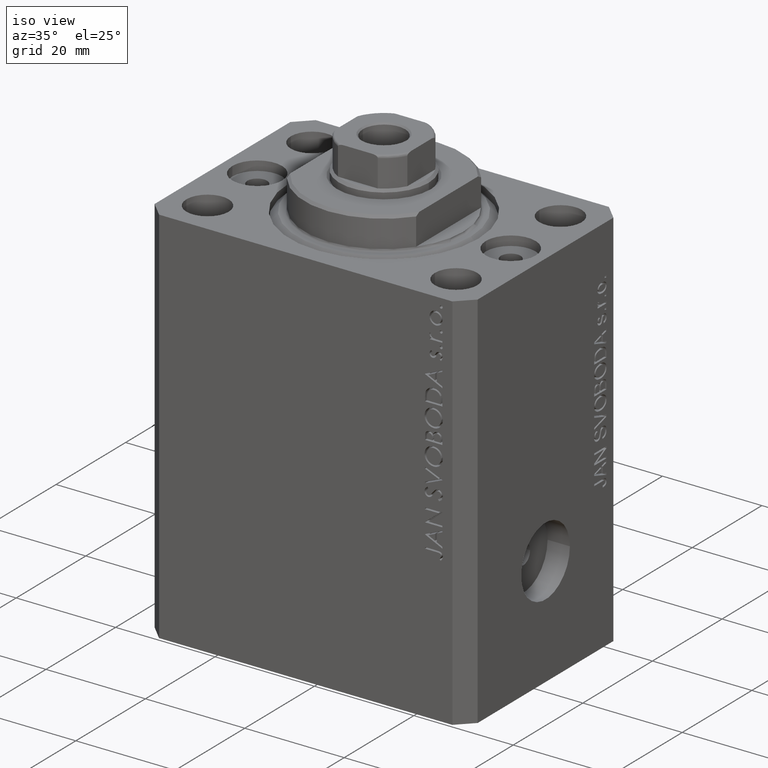
[diagram: clean part render]
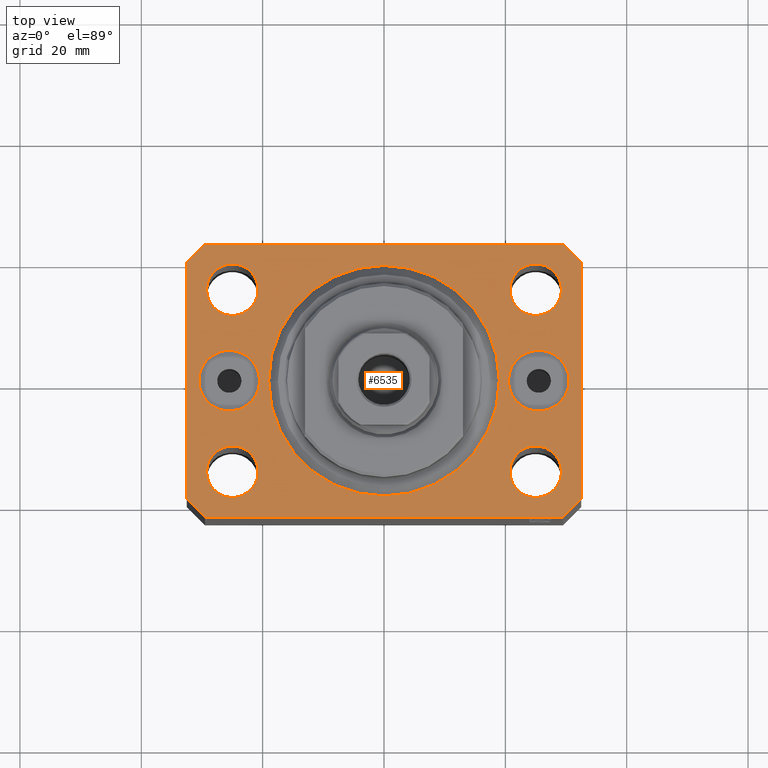
[diagram: tour spotlight — one face highlighted and labeled with its STEP entity id]
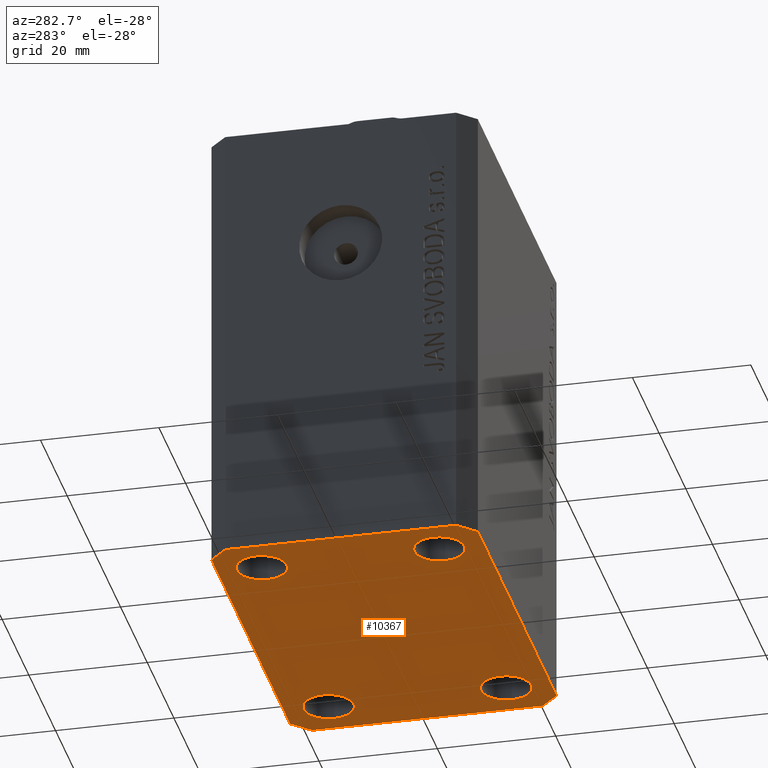
[diagram: tour spotlight — one face highlighted and labeled with its STEP entity id]
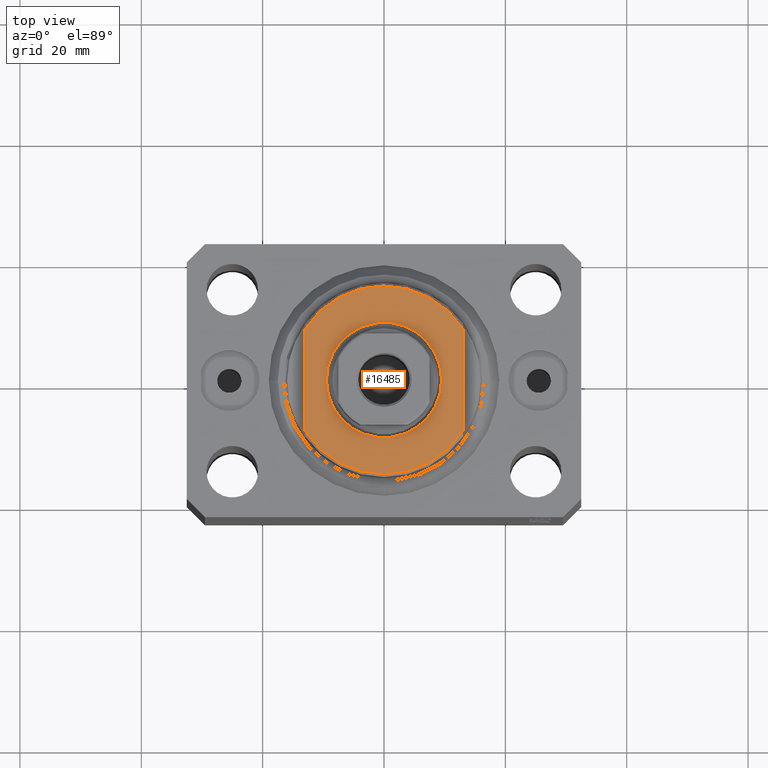
[diagram: tour spotlight — one face highlighted and labeled with its STEP entity id]
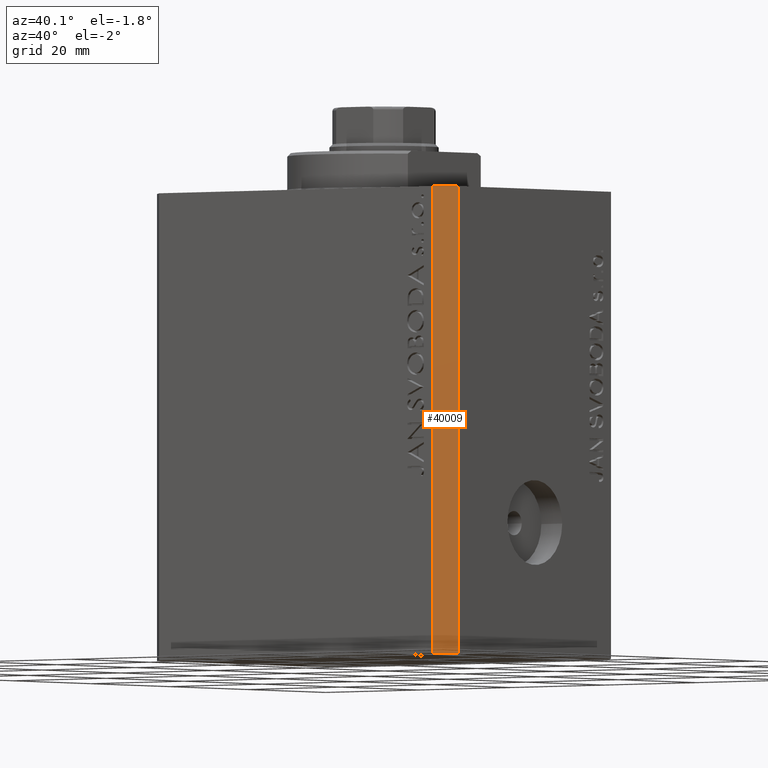
[diagram: tour spotlight — one face highlighted and labeled with its STEP entity id]
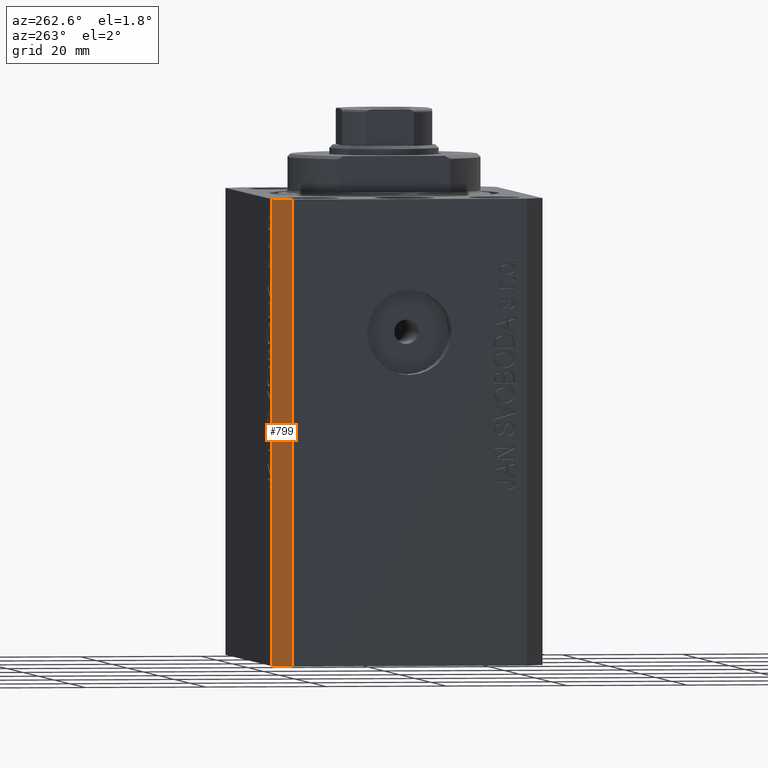
[diagram: tour spotlight — one face highlighted and labeled with its STEP entity id]
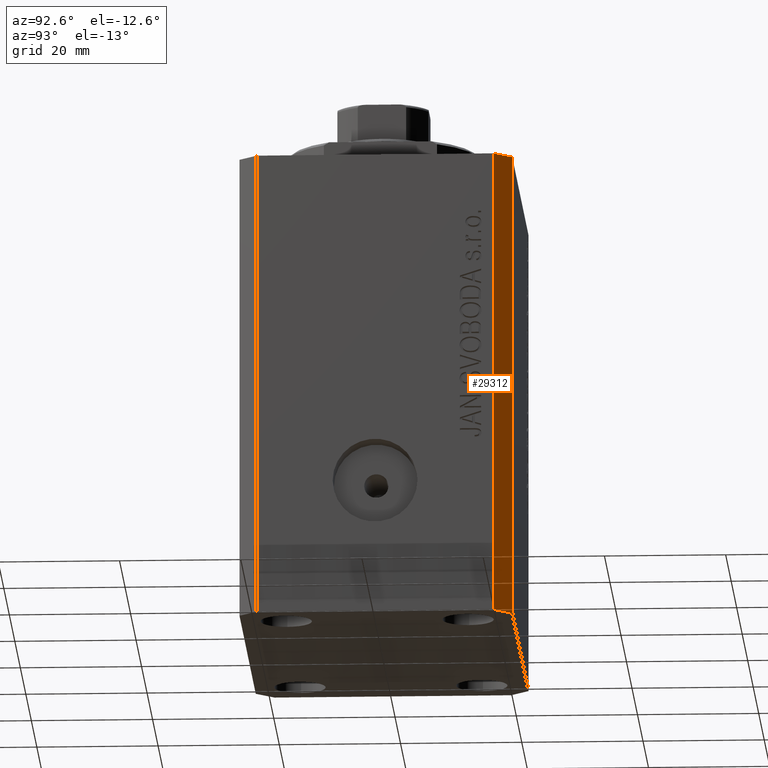
[diagram: tour spotlight — one face highlighted and labeled with its STEP entity id]
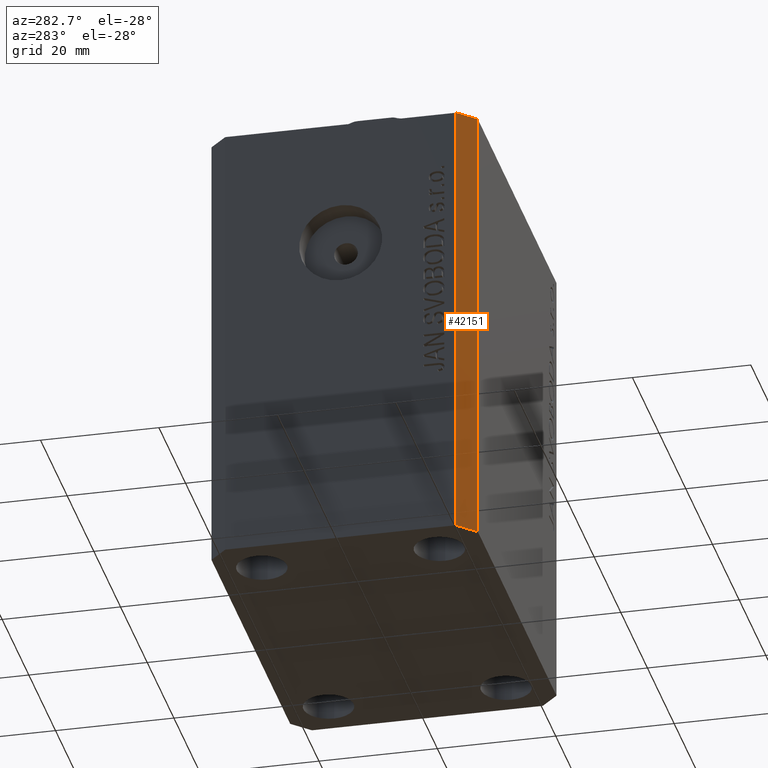
[diagram: tour spotlight — one face highlighted and labeled with its STEP entity id]
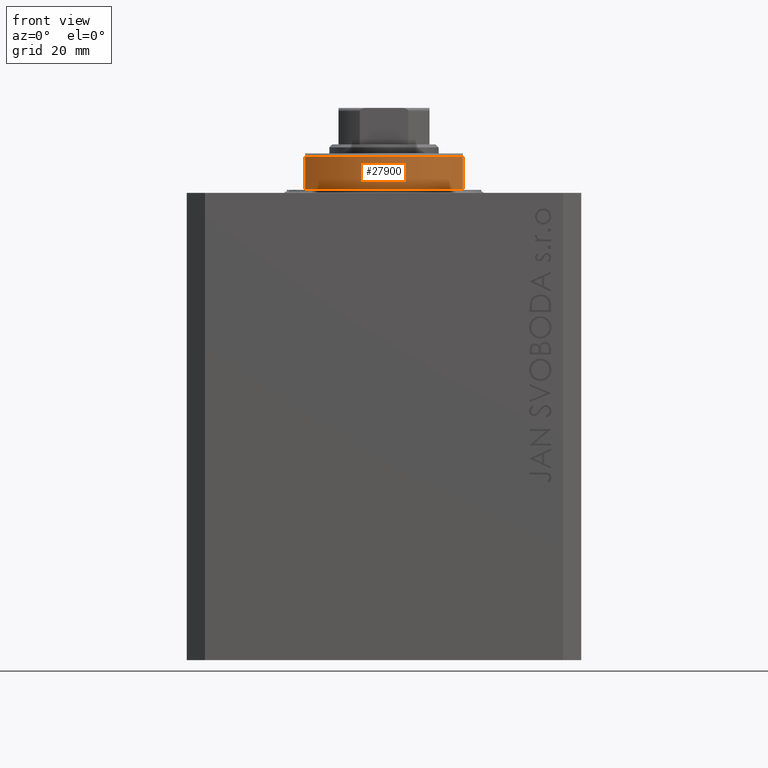
[diagram: tour spotlight — one face highlighted and labeled with its STEP entity id]
A machine part: a face-by-face anatomy tour. The part has 864 B-rep faces; the first image is the clean iso view, then the 8 largest visible faces are spotlighted one at a time (largest first), each with its STEP entity span.

Face 1 — top view, entity #6535. In plain terms, the highlighted planar face has unit normal (0, 0, 1).
Definition (entity closure, byte-faithful):
#118 = AXIS2_PLACEMENT_3D ( 'NONE', #22908, #26051, #29667 ) ;
#160 = CARTESIAN_POINT ( 'NONE',  ( 20.75000000004271072, 14.99999999999999289, 0.000000000000000000 ) ) ;
#183 = CARTESIAN_POINT ( 'NONE',  ( -32.49999999999650413, 19.49999999999949907, 0.000000000000000000 ) ) ;
#424 = ORIENTED_EDGE ( 'NONE', *, *, #6793, .F. ) ;
#431 = DIRECTION ( 'NONE',  ( 0.000000000000000000, -0.000000000000000000, -1.000000000000000000 ) ) ;
#1109 = CIRCLE ( 'NONE', #6868, 4.250000000040370374 ) ;
#1147 = CARTESIAN_POINT ( 'NONE',  ( -29.49999999999650413, 22.49999999999949907, 0.000000000000000000 ) ) ;
#1176 = AXIS2_PLACEMENT_3D ( 'NONE', #25737, #39456, #39677 ) ;
#1183 = CARTESIAN_POINT ( 'NONE',  ( 25.00000000000000000, 14.99999999999999289, 0.000000000000000000 ) ) ;
#1264 = DIRECTION ( 'NONE',  ( 1.000000000000000000, 0.000000000000000000, 0.000000000000000000 ) ) ;
#1476 = AXIS2_PLACEMENT_3D ( 'NONE', #43531, #42777, #32453 ) ;
#1494 = VERTEX_POINT ( 'NONE', #20289 ) ;
#1501 = AXIS2_PLACEMENT_3D ( 'NONE', #10987, #25167, #35503 ) ;
#1504 = EDGE_LOOP ( 'NONE', ( #42966, #39651 ) ) ;
#1828 = VERTEX_POINT ( 'NONE', #15194 ) ;
#1849 = CIRCLE ( 'NONE', #28434, 19.00000000000000000 ) ;
#1906 = ORIENTED_EDGE ( 'NONE', *, *, #6217, .F. ) ;
#2116 = DIRECTION ( 'NONE',  ( 0.000000000000000000, 0.000000000000000000, 1.000000000000000000 ) ) ;
#2318 = CARTESIAN_POINT ( 'NONE',  ( -29.49999999999650413, -22.49999999999949907, 0.000000000000000000 ) ) ;
#2359 = EDGE_CURVE ( 'NONE', #35031, #4308, #33827, .T. ) ;
#2524 = ORIENTED_EDGE ( 'NONE', *, *, #11806, .T. ) ;
#3663 = CARTESIAN_POINT ( 'NONE',  ( 32.49999999999651124, -19.49999999999949196, 0.000000000000000000 ) ) ;
#3719 = DIRECTION ( 'NONE',  ( 0.7071067811865483499, 0.7071067811865466846, 0.000000000000000000 ) ) ;
#3772 = VECTOR ( 'NONE', #27748, 1000.000000000000000 ) ;
#3783 = DIRECTION ( 'NONE',  ( 1.000000000000000000, 0.000000000000000000, 0.000000000000000000 ) ) ;
#3875 = CARTESIAN_POINT ( 'NONE',  ( 29.49999999999707967, 22.49999999999952038, 0.000000000000000000 ) ) ;
#3940 = CIRCLE ( 'NONE', #34814, 4.249999999976314058 ) ;
#4308 = VERTEX_POINT ( 'NONE', #3875 ) ;
#4645 = AXIS2_PLACEMENT_3D ( 'NONE', #34412, #6759, #37123 ) ;
#5020 = LINE ( 'NONE', #2318, #21180 ) ;
#5638 = DIRECTION ( 'NONE',  ( 0.000000000000000000, 0.000000000000000000, 1.000000000000000000 ) ) ;
#5723 = VERTEX_POINT ( 'NONE', #183 ) ;
#5763 = CARTESIAN_POINT ( 'NONE',  ( -29.49999999999650413, -22.49999999999949907, 0.000000000000000000 ) ) ;
#6217 = EDGE_CURVE ( 'NONE', #11449, #36524, #3940, .T. ) ;
#6535 = ADVANCED_FACE ( 'NONE', ( #36898, #24251, #37948, #43861, #37731, #10716, #7142, #14096 ), #27839, .T. ) ;
#6759 = DIRECTION ( 'NONE',  ( 0.000000000000000000, 0.000000000000000000, 1.000000000000000000 ) ) ;
#6793 = EDGE_CURVE ( 'NONE', #20005, #40173, #33815, .T. ) ;
#6868 = AXIS2_PLACEMENT_3D ( 'NONE', #14741, #21077, #1264 ) ;
#7142 = FACE_BOUND ( 'NONE', #37693, .T. ) ;
#7230 = EDGE_CURVE ( 'NONE', #17576, #35031, #17146, .T. ) ;
#7292 = AXIS2_PLACEMENT_3D ( 'NONE', #13438, #27186, #3783 ) ;
#7347 = CARTESIAN_POINT ( 'NONE',  ( 32.49999999999702993, 19.49999999999945999, 0.000000000000000000 ) ) ;
#7836 = AXIS2_PLACEMENT_3D ( 'NONE', #1183, #36237, #14871 ) ;
#8251 = VECTOR ( 'NONE', #10259, 1000.000000000000114 ) ;
#8273 = EDGE_CURVE ( 'NONE', #16679, #42907, #20909, .T. ) ;
#9001 = CARTESIAN_POINT ( 'NONE',  ( -20.74999999995962341, -15.00000000000000355, 0.000000000000000000 ) ) ;
#9236 = EDGE_CURVE ( 'NONE', #36524, #11449, #40324, .T. ) ;
#9349 = EDGE_CURVE ( 'NONE', #1494, #29131, #26692, .T. ) ;
#9544 = CARTESIAN_POINT ( 'NONE',  ( 29.49999999999707967, 22.49999999999952038, 0.000000000000000000 ) ) ;
#9907 = CARTESIAN_POINT ( 'NONE',  ( 30.50000000000333955, 0.000000000000000000, 0.000000000000000000 ) ) ;
#10259 = DIRECTION ( 'NONE',  ( 0.7071067811865474617, -0.7071067811865474617, 0.000000000000000000 ) ) ;
#10284 = ORIENTED_EDGE ( 'NONE', *, *, #12834, .F. ) ;
#10500 = VERTEX_POINT ( 'NONE', #43604 ) ;
#10584 = CARTESIAN_POINT ( 'NONE',  ( -32.49999999999650413, 19.49999999999949907, 0.000000000000000000 ) ) ;
#10716 = FACE_BOUND ( 'NONE', #20881, .T. ) ;
#10987 = CARTESIAN_POINT ( 'NONE',  ( -25.50000000000000000, 0.000000000000000000, 0.000000000000000000 ) ) ;
#11098 = VERTEX_POINT ( 'NONE', #1147 ) ;
#11155 = ORIENTED_EDGE ( 'NONE', *, *, #8273, .F. ) ;
#11449 = VERTEX_POINT ( 'NONE', #29412 ) ;
#11536 = ORIENTED_EDGE ( 'NONE', *, *, #42639, .F. ) ;
#11559 = CARTESIAN_POINT ( 'NONE',  ( 20.49999999999665690, 6.123233995740857512E-16, 0.000000000000000000 ) ) ;
#11677 = CARTESIAN_POINT ( 'NONE',  ( 0.000000000000000000, 0.000000000000000000, 0.000000000000000000 ) ) ;
#11806 = EDGE_CURVE ( 'NONE', #4308, #11098, #12233, .T. ) ;
#12087 = CARTESIAN_POINT ( 'NONE',  ( 32.49999999999651124, -19.49999999999949196, 0.000000000000000000 ) ) ;
#12147 = DIRECTION ( 'NONE',  ( 0.000000000000000000, -0.000000000000000000, -1.000000000000000000 ) ) ;
#12192 = CARTESIAN_POINT ( 'NONE',  ( 24.99999999999999289, -15.00000000000000355, 0.000000000000000000 ) ) ;
#12233 = LINE ( 'NONE', #9544, #12390 ) ;
#12390 = VECTOR ( 'NONE', #36995, 1000.000000000000000 ) ;
#12435 = CARTESIAN_POINT ( 'NONE',  ( -25.50000000000000000, 0.000000000000000000, 0.000000000000000000 ) ) ;
#12603 = DIRECTION ( 'NONE',  ( 1.000000000000000000, 0.000000000000000000, 0.000000000000000000 ) ) ;
#12834 = EDGE_CURVE ( 'NONE', #28026, #10500, #24667, .T. ) ;
#13100 = EDGE_LOOP ( 'NONE', ( #32672, #424 ) ) ;
#13438 = CARTESIAN_POINT ( 'NONE',  ( 25.00000000000000000, 14.99999999999999289, 0.000000000000000000 ) ) ;
#13740 = LINE ( 'NONE', #10584, #31376 ) ;
#13965 = DIRECTION ( 'NONE',  ( 0.000000000000000000, -1.000000000000000000, 0.000000000000000000 ) ) ;
#14096 = FACE_BOUND ( 'NONE', #26546, .T. ) ;
#14741 = CARTESIAN_POINT ( 'NONE',  ( -24.99999999999999289, -15.00000000000000355, 0.000000000000000000 ) ) ;
#14871 = DIRECTION ( 'NONE',  ( 1.000000000000000000, 0.000000000000000000, 0.000000000000000000 ) ) ;
#15065 = CARTESIAN_POINT ( 'NONE',  ( -20.49999999999665690, 0.000000000000000000, 0.000000000000000000 ) ) ;
#15194 = CARTESIAN_POINT ( 'NONE',  ( 19.00000000000000000, 0.000000000000000000, 0.000000000000000000 ) ) ;
#15333 = CARTESIAN_POINT ( 'NONE',  ( -19.00000000000000000, 2.326828918379970970E-15, 0.000000000000000000 ) ) ;
#15714 = CIRCLE ( 'NONE', #28649, 5.000000000003342215 ) ;
#15718 = CIRCLE ( 'NONE', #7836, 4.249999999957291053 ) ;
#15740 = ORIENTED_EDGE ( 'NONE', *, *, #23583, .F. ) ;
#15792 = DIRECTION ( 'NONE',  ( 1.000000000000000000, 1.176083712526788232E-16, 0.000000000000000000 ) ) ;
#16032 = DIRECTION ( 'NONE',  ( 0.000000000000000000, 0.000000000000000000, 1.000000000000000000 ) ) ;
#16679 = VERTEX_POINT ( 'NONE', #15065 ) ;
#17004 = CIRCLE ( 'NONE', #1176, 4.250000000021375790 ) ;
#17146 = LINE ( 'NONE', #3663, #30967 ) ;
#17213 = CIRCLE ( 'NONE', #21513, 5.000000000003342215 ) ;
#17427 = LINE ( 'NONE', #41051, #33019 ) ;
#17576 = VERTEX_POINT ( 'NONE', #12087 ) ;
#17724 = CARTESIAN_POINT ( 'NONE',  ( -20.74999999997862687, 14.99999999999999645, 0.000000000000000000 ) ) ;
#17972 = AXIS2_PLACEMENT_3D ( 'NONE', #24472, #5638, #26341 ) ;
#18324 = ORIENTED_EDGE ( 'NONE', *, *, #7230, .T. ) ;
#18647 = VERTEX_POINT ( 'NONE', #9907 ) ;
#19147 = CARTESIAN_POINT ( 'NONE',  ( -29.49999999999650413, 22.49999999999949907, 0.000000000000000000 ) ) ;
#19170 = ORIENTED_EDGE ( 'NONE', *, *, #42105, .T. ) ;
#19192 = DIRECTION ( 'NONE',  ( 1.000000000000000000, 0.000000000000000000, 0.000000000000000000 ) ) ;
#19615 = AXIS2_PLACEMENT_3D ( 'NONE', #35917, #39286, #32120 ) ;
#19828 = LINE ( 'NONE', #19147, #39417 ) ;
#20005 = VERTEX_POINT ( 'NONE', #29644 ) ;
#20166 = VERTEX_POINT ( 'NONE', #20810 ) ;
#20248 = CARTESIAN_POINT ( 'NONE',  ( -32.49999999999650413, -19.49999999999949907, 0.000000000000000000 ) ) ;
#20289 = CARTESIAN_POINT ( 'NONE',  ( 29.24999999995729283, 14.99999999999999289, 0.000000000000000000 ) ) ;
#20414 = CARTESIAN_POINT ( 'NONE',  ( -32.49999999999650413, -19.49999999999949907, 0.000000000000000000 ) ) ;
#20736 = EDGE_CURVE ( 'NONE', #23270, #1828, #31971, .T. ) ;
#20810 = CARTESIAN_POINT ( 'NONE',  ( 29.49999999999650413, -22.49999999999949196, 0.000000000000000000 ) ) ;
#20881 = EDGE_LOOP ( 'NONE', ( #15740, #40560 ) ) ;
#20909 = CIRCLE ( 'NONE', #1501, 5.000000000003342215 ) ;
#21077 = DIRECTION ( 'NONE',  ( 0.000000000000000000, 0.000000000000000000, 1.000000000000000000 ) ) ;
#21180 = VECTOR ( 'NONE', #15792, 1000.000000000000000 ) ;
#21513 = AXIS2_PLACEMENT_3D ( 'NONE', #12435, #2116, #21914 ) ;
#21914 = DIRECTION ( 'NONE',  ( 1.000000000000000000, 0.000000000000000000, 0.000000000000000000 ) ) ;
#22908 = CARTESIAN_POINT ( 'NONE',  ( 24.99999999999999289, -15.00000000000000355, 0.000000000000000000 ) ) ;
#23270 = VERTEX_POINT ( 'NONE', #15333 ) ;
#23583 = EDGE_CURVE ( 'NONE', #1828, #23270, #1849, .T. ) ;
#24097 = EDGE_CURVE ( 'NONE', #36802, #20166, #5020, .T. ) ;
#24251 = FACE_BOUND ( 'NONE', #25091, .T. ) ;
#24472 = CARTESIAN_POINT ( 'NONE',  ( 0.000000000000000000, 0.000000000000000000, 0.000000000000000000 ) ) ;
#24663 = ORIENTED_EDGE ( 'NONE', *, *, #39652, .T. ) ;
#24667 = CIRCLE ( 'NONE', #19615, 4.250000000021375790 ) ;
#25091 = EDGE_LOOP ( 'NONE', ( #10284, #25964 ) ) ;
#25167 = DIRECTION ( 'NONE',  ( 0.000000000000000000, 0.000000000000000000, 1.000000000000000000 ) ) ;
#25345 = ORIENTED_EDGE ( 'NONE', *, *, #40935, .T. ) ;
#25695 = EDGE_CURVE ( 'NONE', #32524, #36802, #30543, .T. ) ;
#25737 = CARTESIAN_POINT ( 'NONE',  ( -25.00000000000000000, 14.99999999999999645, 0.000000000000000000 ) ) ;
#25964 = ORIENTED_EDGE ( 'NONE', *, *, #29315, .F. ) ;
#26051 = DIRECTION ( 'NONE',  ( 0.000000000000000000, 0.000000000000000000, 1.000000000000000000 ) ) ;
#26341 = DIRECTION ( 'NONE',  ( 1.000000000000000000, 0.000000000000000000, -0.000000000000000000 ) ) ;
#26546 = EDGE_LOOP ( 'NONE', ( #30571, #25345 ) ) ;
#26692 = CIRCLE ( 'NONE', #7292, 4.249999999957291053 ) ;
#26792 = EDGE_LOOP ( 'NONE', ( #1906, #30069 ) ) ;
#26864 = CARTESIAN_POINT ( 'NONE',  ( 32.49999999999702993, 19.49999999999945999, 0.000000000000000000 ) ) ;
#27186 = DIRECTION ( 'NONE',  ( 0.000000000000000000, 0.000000000000000000, 1.000000000000000000 ) ) ;
#27615 = EDGE_CURVE ( 'NONE', #40173, #20005, #1109, .T. ) ;
#27748 = DIRECTION ( 'NONE',  ( -0.7071067811865344721, 0.7071067811865606734, 0.000000000000000000 ) ) ;
#27839 = PLANE ( 'NONE',  #17972 ) ;
#27859 = CIRCLE ( 'NONE', #29290, 5.000000000003342215 ) ;
#28026 = VERTEX_POINT ( 'NONE', #17724 ) ;
#28434 = AXIS2_PLACEMENT_3D ( 'NONE', #11677, #42937, #42500 ) ;
#28649 = AXIS2_PLACEMENT_3D ( 'NONE', #33315, #12147, #12603 ) ;
#29131 = VERTEX_POINT ( 'NONE', #160 ) ;
#29290 = AXIS2_PLACEMENT_3D ( 'NONE', #37970, #431, #34821 ) ;
#29315 = EDGE_CURVE ( 'NONE', #10500, #28026, #17004, .T. ) ;
#29412 = CARTESIAN_POINT ( 'NONE',  ( 29.24999999997631051, -15.00000000000000355, 0.000000000000000000 ) ) ;
#29624 = EDGE_CURVE ( 'NONE', #5723, #32524, #13740, .T. ) ;
#29644 = CARTESIAN_POINT ( 'NONE',  ( -29.25000000004036593, -15.00000000000000355, 0.000000000000000000 ) ) ;
#29667 = DIRECTION ( 'NONE',  ( 1.000000000000000000, 0.000000000000000000, 0.000000000000000000 ) ) ;
#30069 = ORIENTED_EDGE ( 'NONE', *, *, #9236, .F. ) ;
#30394 = CARTESIAN_POINT ( 'NONE',  ( 20.75000000002367884, -15.00000000000000355, 0.000000000000000000 ) ) ;
#30543 = LINE ( 'NONE', #20414, #8251 ) ;
#30571 = ORIENTED_EDGE ( 'NONE', *, *, #34133, .T. ) ;
#30908 = ORIENTED_EDGE ( 'NONE', *, *, #25695, .T. ) ;
#30967 = VECTOR ( 'NONE', #34685, 1000.000000000000000 ) ;
#31282 = ORIENTED_EDGE ( 'NONE', *, *, #24097, .T. ) ;
#31376 = VECTOR ( 'NONE', #13965, 1000.000000000000000 ) ;
#31971 = CIRCLE ( 'NONE', #4645, 19.00000000000000000 ) ;
#32120 = DIRECTION ( 'NONE',  ( 1.000000000000000000, 0.000000000000000000, 0.000000000000000000 ) ) ;
#32433 = CARTESIAN_POINT ( 'NONE',  ( -30.50000000000333955, 6.123233995740857512E-16, 0.000000000000000000 ) ) ;
#32453 = DIRECTION ( 'NONE',  ( 1.000000000000000000, 0.000000000000000000, 0.000000000000000000 ) ) ;
#32524 = VERTEX_POINT ( 'NONE', #20248 ) ;
#32672 = ORIENTED_EDGE ( 'NONE', *, *, #27615, .F. ) ;
#33019 = VECTOR ( 'NONE', #3719, 1000.000000000000000 ) ;
#33315 = CARTESIAN_POINT ( 'NONE',  ( 25.50000000000000000, 0.000000000000000000, 0.000000000000000000 ) ) ;
#33341 = ORIENTED_EDGE ( 'NONE', *, *, #29624, .T. ) ;
#33815 = CIRCLE ( 'NONE', #1476, 4.250000000040370374 ) ;
#33827 = LINE ( 'NONE', #26864, #3772 ) ;
#34133 = EDGE_CURVE ( 'NONE', #18647, #43887, #27859, .T. ) ;
#34412 = CARTESIAN_POINT ( 'NONE',  ( 0.000000000000000000, 0.000000000000000000, 0.000000000000000000 ) ) ;
#34685 = DIRECTION ( 'NONE',  ( 1.334402673828349134E-14, 1.000000000000000000, 0.000000000000000000 ) ) ;
#34814 = AXIS2_PLACEMENT_3D ( 'NONE', #12192, #16032, #19192 ) ;
#34821 = DIRECTION ( 'NONE',  ( 1.000000000000000000, 0.000000000000000000, 0.000000000000000000 ) ) ;
#35031 = VERTEX_POINT ( 'NONE', #7347 ) ;
#35503 = DIRECTION ( 'NONE',  ( 1.000000000000000000, 0.000000000000000000, 0.000000000000000000 ) ) ;
#35917 = CARTESIAN_POINT ( 'NONE',  ( -25.00000000000000000, 14.99999999999999645, 0.000000000000000000 ) ) ;
#36237 = DIRECTION ( 'NONE',  ( 0.000000000000000000, 0.000000000000000000, 1.000000000000000000 ) ) ;
#36453 = ORIENTED_EDGE ( 'NONE', *, *, #2359, .T. ) ;
#36524 = VERTEX_POINT ( 'NONE', #30394 ) ;
#36802 = VERTEX_POINT ( 'NONE', #5763 ) ;
#36898 = FACE_OUTER_BOUND ( 'NONE', #39625, .T. ) ;
#36910 = DIRECTION ( 'NONE',  ( -0.7071067811865474617, -0.7071067811865474617, 0.000000000000000000 ) ) ;
#36995 = DIRECTION ( 'NONE',  ( -1.000000000000000000, -3.528251137580330676E-16, 0.000000000000000000 ) ) ;
#37123 = DIRECTION ( 'NONE',  ( 1.000000000000000000, 0.000000000000000000, 0.000000000000000000 ) ) ;
#37693 = EDGE_LOOP ( 'NONE', ( #11155, #11536 ) ) ;
#37731 = FACE_BOUND ( 'NONE', #13100, .T. ) ;
#37948 = FACE_BOUND ( 'NONE', #1504, .T. ) ;
#37970 = CARTESIAN_POINT ( 'NONE',  ( 25.50000000000000000, 0.000000000000000000, 0.000000000000000000 ) ) ;
#38297 = EDGE_CURVE ( 'NONE', #29131, #1494, #15718, .T. ) ;
#39286 = DIRECTION ( 'NONE',  ( 0.000000000000000000, 0.000000000000000000, 1.000000000000000000 ) ) ;
#39417 = VECTOR ( 'NONE', #36910, 1000.000000000000114 ) ;
#39456 = DIRECTION ( 'NONE',  ( 0.000000000000000000, 0.000000000000000000, 1.000000000000000000 ) ) ;
#39625 = EDGE_LOOP ( 'NONE', ( #2524, #19170, #33341, #30908, #31282, #24663, #18324, #36453 ) ) ;
#39651 = ORIENTED_EDGE ( 'NONE', *, *, #38297, .F. ) ;
#39652 = EDGE_CURVE ( 'NONE', #20166, #17576, #17427, .T. ) ;
#39677 = DIRECTION ( 'NONE',  ( 1.000000000000000000, 0.000000000000000000, 0.000000000000000000 ) ) ;
#40173 = VERTEX_POINT ( 'NONE', #9001 ) ;
#40324 = CIRCLE ( 'NONE', #118, 4.249999999976314058 ) ;
#40560 = ORIENTED_EDGE ( 'NONE', *, *, #20736, .F. ) ;
#40935 = EDGE_CURVE ( 'NONE', #43887, #18647, #15714, .T. ) ;
#41051 = CARTESIAN_POINT ( 'NONE',  ( 29.49999999999650413, -22.49999999999949196, 0.000000000000000000 ) ) ;
#42105 = EDGE_CURVE ( 'NONE', #11098, #5723, #19828, .T. ) ;
#42500 = DIRECTION ( 'NONE',  ( 1.000000000000000000, 0.000000000000000000, 0.000000000000000000 ) ) ;
#42639 = EDGE_CURVE ( 'NONE', #42907, #16679, #17213, .T. ) ;
#42777 = DIRECTION ( 'NONE',  ( 0.000000000000000000, 0.000000000000000000, 1.000000000000000000 ) ) ;
#42907 = VERTEX_POINT ( 'NONE', #32433 ) ;
#42937 = DIRECTION ( 'NONE',  ( 0.000000000000000000, 0.000000000000000000, 1.000000000000000000 ) ) ;
#42966 = ORIENTED_EDGE ( 'NONE', *, *, #9349, .F. ) ;
#43531 = CARTESIAN_POINT ( 'NONE',  ( -24.99999999999999289, -15.00000000000000355, 0.000000000000000000 ) ) ;
#43604 = CARTESIAN_POINT ( 'NONE',  ( -29.25000000002137668, 14.99999999999999645, 0.000000000000000000 ) ) ;
#43861 = FACE_BOUND ( 'NONE', #26792, .T. ) ;
#43887 = VERTEX_POINT ( 'NONE', #11559 ) ;

Face 2 — auxiliary view, entity #10367. In plain terms, the highlighted planar face has unit normal (0, 0, 1).
Definition (entity closure, byte-faithful):
#155 = AXIS2_PLACEMENT_3D ( 'NONE', #1321, #26037, #36157 ) ;
#522 = EDGE_LOOP ( 'NONE', ( #30920, #9062 ) ) ;
#751 = LINE ( 'NONE', #31132, #20453 ) ;
#1027 = EDGE_CURVE ( 'NONE', #5011, #24009, #10899, .T. ) ;
#1321 = CARTESIAN_POINT ( 'NONE',  ( 24.99999999999999289, -15.00000000000000355, -77.00000000000000000 ) ) ;
#1346 = VERTEX_POINT ( 'NONE', #27782 ) ;
#1353 = DIRECTION ( 'NONE',  ( 1.000000000000000000, 0.000000000000000000, -0.000000000000000000 ) ) ;
#1507 = CARTESIAN_POINT ( 'NONE',  ( -29.49999999999650413, -22.49999999999949907, -77.00000000000000000 ) ) ;
#1569 = CARTESIAN_POINT ( 'NONE',  ( 0.000000000000000000, 0.000000000000000000, -77.00000000000000000 ) ) ;
#1792 = FACE_OUTER_BOUND ( 'NONE', #38044, .T. ) ;
#1832 = DIRECTION ( 'NONE',  ( 1.000000000000000000, 0.000000000000000000, 0.000000000000000000 ) ) ;
#1838 = DIRECTION ( 'NONE',  ( 1.334402673828349134E-14, 1.000000000000000000, 0.000000000000000000 ) ) ;
#2722 = AXIS2_PLACEMENT_3D ( 'NONE', #24926, #34600, #3800 ) ;
#3517 = AXIS2_PLACEMENT_3D ( 'NONE', #42965, #32644, #1832 ) ;
#3800 = DIRECTION ( 'NONE',  ( 1.000000000000000000, 0.000000000000000000, 0.000000000000000000 ) ) ;
#4608 = DIRECTION ( 'NONE',  ( 0.7071067811865474617, -0.7071067811865474617, 0.000000000000000000 ) ) ;
#4758 = DIRECTION ( 'NONE',  ( -0.000000000000000000, -0.000000000000000000, -1.000000000000000000 ) ) ;
#5011 = VERTEX_POINT ( 'NONE', #12466 ) ;
#5142 = VERTEX_POINT ( 'NONE', #29822 ) ;
#5456 = CARTESIAN_POINT ( 'NONE',  ( -32.49999999999650413, 19.49999999999949907, -77.00000000000000000 ) ) ;
#5821 = ORIENTED_EDGE ( 'NONE', *, *, #1027, .F. ) ;
#6197 = LINE ( 'NONE', #19915, #16727 ) ;
#6270 = EDGE_CURVE ( 'NONE', #24009, #5011, #40255, .T. ) ;
#6720 = ORIENTED_EDGE ( 'NONE', *, *, #40064, .F. ) ;
#6900 = AXIS2_PLACEMENT_3D ( 'NONE', #43671, #13742, #37159 ) ;
#7320 = EDGE_CURVE ( 'NONE', #24098, #18546, #31756, .T. ) ;
#7684 = CARTESIAN_POINT ( 'NONE',  ( 29.49999999999707967, 22.49999999999952038, -77.00000000000000000 ) ) ;
#8027 = VERTEX_POINT ( 'NONE', #21624 ) ;
#8484 = DIRECTION ( 'NONE',  ( 1.000000000000000000, 0.000000000000000000, 0.000000000000000000 ) ) ;
#8523 = FACE_BOUND ( 'NONE', #14933, .T. ) ;
#8596 = CIRCLE ( 'NONE', #28747, 4.250000000021375790 ) ;
#8703 = DIRECTION ( 'NONE',  ( -0.000000000000000000, -0.000000000000000000, -1.000000000000000000 ) ) ;
#9058 = DIRECTION ( 'NONE',  ( -0.000000000000000000, -0.000000000000000000, -1.000000000000000000 ) ) ;
#9062 = ORIENTED_EDGE ( 'NONE', *, *, #40894, .F. ) ;
#9736 = AXIS2_PLACEMENT_3D ( 'NONE', #39295, #8703, #8484 ) ;
#9974 = ORIENTED_EDGE ( 'NONE', *, *, #17977, .F. ) ;
#10367 = ADVANCED_FACE ( 'NONE', ( #8523, #25194, #42486, #36188, #1792 ), #12330, .F. ) ;
#10456 = VERTEX_POINT ( 'NONE', #21813 ) ;
#10899 = CIRCLE ( 'NONE', #155, 4.249999999976314058 ) ;
#11298 = CARTESIAN_POINT ( 'NONE',  ( 20.75000000002367884, -15.00000000000000355, -77.00000000000000000 ) ) ;
#11730 = VERTEX_POINT ( 'NONE', #40144 ) ;
#11811 = EDGE_CURVE ( 'NONE', #32590, #24098, #6197, .T. ) ;
#11974 = DIRECTION ( 'NONE',  ( 1.000000000000000000, 0.000000000000000000, 0.000000000000000000 ) ) ;
#12330 = PLANE ( 'NONE',  #29573 ) ;
#12342 = ORIENTED_EDGE ( 'NONE', *, *, #18184, .F. ) ;
#12466 = CARTESIAN_POINT ( 'NONE',  ( 29.24999999997631051, -15.00000000000000355, -77.00000000000000000 ) ) ;
#12758 = ORIENTED_EDGE ( 'NONE', *, *, #23307, .F. ) ;
#12949 = ORIENTED_EDGE ( 'NONE', *, *, #20550, .F. ) ;
#13742 = DIRECTION ( 'NONE',  ( -0.000000000000000000, -0.000000000000000000, -1.000000000000000000 ) ) ;
#14933 = EDGE_LOOP ( 'NONE', ( #38138, #12758 ) ) ;
#15082 = DIRECTION ( 'NONE',  ( 0.000000000000000000, -1.000000000000000000, 0.000000000000000000 ) ) ;
#15358 = EDGE_LOOP ( 'NONE', ( #5821, #33087 ) ) ;
#15574 = CARTESIAN_POINT ( 'NONE',  ( 24.99999999999999289, -15.00000000000000355, -77.00000000000000000 ) ) ;
#16380 = CIRCLE ( 'NONE', #23595, 4.250000000040370374 ) ;
#16727 = VECTOR ( 'NONE', #43964, 1000.000000000000000 ) ;
#17344 = VERTEX_POINT ( 'NONE', #5456 ) ;
#17588 = VECTOR ( 'NONE', #15082, 1000.000000000000000 ) ;
#17977 = EDGE_CURVE ( 'NONE', #8027, #38777, #22415, .T. ) ;
#18184 = EDGE_CURVE ( 'NONE', #1346, #8027, #38780, .T. ) ;
#18435 = EDGE_CURVE ( 'NONE', #38777, #42101, #751, .T. ) ;
#18546 = VERTEX_POINT ( 'NONE', #22310 ) ;
#19915 = CARTESIAN_POINT ( 'NONE',  ( 32.49999999999702993, 19.49999999999945999, -77.00000000000000000 ) ) ;
#20453 = VECTOR ( 'NONE', #38733, 1000.000000000000000 ) ;
#20550 = EDGE_CURVE ( 'NONE', #17344, #1346, #32421, .T. ) ;
#21624 = CARTESIAN_POINT ( 'NONE',  ( -29.49999999999650413, -22.49999999999949907, -77.00000000000000000 ) ) ;
#21642 = LINE ( 'NONE', #42969, #23656 ) ;
#21653 = ORIENTED_EDGE ( 'NONE', *, *, #11811, .F. ) ;
#21813 = CARTESIAN_POINT ( 'NONE',  ( -20.74999999995962341, -15.00000000000000355, -77.00000000000000000 ) ) ;
#21848 = CARTESIAN_POINT ( 'NONE',  ( -32.49999999999650413, 19.49999999999949907, -77.00000000000000000 ) ) ;
#22094 = CIRCLE ( 'NONE', #2722, 4.249999999957291053 ) ;
#22310 = CARTESIAN_POINT ( 'NONE',  ( -29.49999999999650413, 22.49999999999949907, -77.00000000000000000 ) ) ;
#22415 = LINE ( 'NONE', #1507, #42629 ) ;
#23307 = EDGE_CURVE ( 'NONE', #11730, #10456, #44227, .T. ) ;
#23511 = ORIENTED_EDGE ( 'NONE', *, *, #26642, .F. ) ;
#23595 = AXIS2_PLACEMENT_3D ( 'NONE', #25087, #25734, #36082 ) ;
#23656 = VECTOR ( 'NONE', #1838, 1000.000000000000000 ) ;
#23808 = CARTESIAN_POINT ( 'NONE',  ( -29.49999999999650413, 22.49999999999949907, -77.00000000000000000 ) ) ;
#24009 = VERTEX_POINT ( 'NONE', #11298 ) ;
#24098 = VERTEX_POINT ( 'NONE', #26150 ) ;
#24170 = ORIENTED_EDGE ( 'NONE', *, *, #18435, .F. ) ;
#24795 = CARTESIAN_POINT ( 'NONE',  ( -25.00000000000000000, 14.99999999999999645, -77.00000000000000000 ) ) ;
#24926 = CARTESIAN_POINT ( 'NONE',  ( 25.00000000000000000, 14.99999999999999289, -77.00000000000000000 ) ) ;
#25087 = CARTESIAN_POINT ( 'NONE',  ( -24.99999999999999289, -15.00000000000000355, -77.00000000000000000 ) ) ;
#25194 = FACE_BOUND ( 'NONE', #15358, .T. ) ;
#25734 = DIRECTION ( 'NONE',  ( -0.000000000000000000, -0.000000000000000000, -1.000000000000000000 ) ) ;
#26037 = DIRECTION ( 'NONE',  ( -0.000000000000000000, -0.000000000000000000, -1.000000000000000000 ) ) ;
#26150 = CARTESIAN_POINT ( 'NONE',  ( 29.49999999999707967, 22.49999999999952038, -77.00000000000000000 ) ) ;
#26642 = EDGE_CURVE ( 'NONE', #5142, #29779, #34144, .T. ) ;
#27782 = CARTESIAN_POINT ( 'NONE',  ( -32.49999999999650413, -19.49999999999949907, -77.00000000000000000 ) ) ;
#28251 = VERTEX_POINT ( 'NONE', #37477 ) ;
#28385 = ORIENTED_EDGE ( 'NONE', *, *, #40437, .F. ) ;
#28563 = CARTESIAN_POINT ( 'NONE',  ( 29.24999999995729283, 14.99999999999999289, -77.00000000000000000 ) ) ;
#28747 = AXIS2_PLACEMENT_3D ( 'NONE', #24795, #4758, #38502 ) ;
#28819 = DIRECTION ( 'NONE',  ( -1.000000000000000000, -3.528251137580330676E-16, 0.000000000000000000 ) ) ;
#28828 = EDGE_LOOP ( 'NONE', ( #6720, #23511 ) ) ;
#29573 = AXIS2_PLACEMENT_3D ( 'NONE', #1569, #35967, #1353 ) ;
#29779 = VERTEX_POINT ( 'NONE', #32392 ) ;
#29822 = CARTESIAN_POINT ( 'NONE',  ( -29.25000000002137668, 14.99999999999999645, -77.00000000000000000 ) ) ;
#30781 = DIRECTION ( 'NONE',  ( -0.7071067811865474617, -0.7071067811865474617, 0.000000000000000000 ) ) ;
#30920 = ORIENTED_EDGE ( 'NONE', *, *, #34091, .F. ) ;
#31040 = CARTESIAN_POINT ( 'NONE',  ( 32.49999999999702993, 19.49999999999945999, -77.00000000000000000 ) ) ;
#31132 = CARTESIAN_POINT ( 'NONE',  ( 29.49999999999650413, -22.49999999999949196, -77.00000000000000000 ) ) ;
#31756 = LINE ( 'NONE', #7684, #43124 ) ;
#32084 = CARTESIAN_POINT ( 'NONE',  ( 29.49999999999650413, -22.49999999999949196, -77.00000000000000000 ) ) ;
#32392 = CARTESIAN_POINT ( 'NONE',  ( -20.74999999997862687, 14.99999999999999645, -77.00000000000000000 ) ) ;
#32421 = LINE ( 'NONE', #21848, #17588 ) ;
#32590 = VERTEX_POINT ( 'NONE', #31040 ) ;
#32644 = DIRECTION ( 'NONE',  ( -0.000000000000000000, -0.000000000000000000, -1.000000000000000000 ) ) ;
#33087 = ORIENTED_EDGE ( 'NONE', *, *, #6270, .F. ) ;
#34060 = VECTOR ( 'NONE', #4608, 1000.000000000000114 ) ;
#34091 = EDGE_CURVE ( 'NONE', #42380, #28251, #22094, .T. ) ;
#34144 = CIRCLE ( 'NONE', #9736, 4.250000000021375790 ) ;
#34393 = EDGE_CURVE ( 'NONE', #10456, #11730, #16380, .T. ) ;
#34600 = DIRECTION ( 'NONE',  ( -0.000000000000000000, -0.000000000000000000, -1.000000000000000000 ) ) ;
#35127 = CIRCLE ( 'NONE', #3517, 4.249999999957291053 ) ;
#35239 = ORIENTED_EDGE ( 'NONE', *, *, #7320, .F. ) ;
#35410 = CARTESIAN_POINT ( 'NONE',  ( -32.49999999999650413, -19.49999999999949907, -77.00000000000000000 ) ) ;
#35967 = DIRECTION ( 'NONE',  ( 0.000000000000000000, 0.000000000000000000, 1.000000000000000000 ) ) ;
#36082 = DIRECTION ( 'NONE',  ( 1.000000000000000000, 0.000000000000000000, 0.000000000000000000 ) ) ;
#36157 = DIRECTION ( 'NONE',  ( 1.000000000000000000, 0.000000000000000000, 0.000000000000000000 ) ) ;
#36188 = FACE_BOUND ( 'NONE', #28828, .T. ) ;
#37068 = LINE ( 'NONE', #23808, #40234 ) ;
#37159 = DIRECTION ( 'NONE',  ( 1.000000000000000000, 0.000000000000000000, 0.000000000000000000 ) ) ;
#37477 = CARTESIAN_POINT ( 'NONE',  ( 20.75000000004271072, 14.99999999999999289, -77.00000000000000000 ) ) ;
#38044 = EDGE_LOOP ( 'NONE', ( #35239, #21653, #38577, #24170, #9974, #12342, #12949, #28385 ) ) ;
#38138 = ORIENTED_EDGE ( 'NONE', *, *, #34393, .F. ) ;
#38237 = EDGE_CURVE ( 'NONE', #42101, #32590, #21642, .T. ) ;
#38502 = DIRECTION ( 'NONE',  ( 1.000000000000000000, 0.000000000000000000, 0.000000000000000000 ) ) ;
#38577 = ORIENTED_EDGE ( 'NONE', *, *, #38237, .F. ) ;
#38733 = DIRECTION ( 'NONE',  ( 0.7071067811865483499, 0.7071067811865466846, 0.000000000000000000 ) ) ;
#38777 = VERTEX_POINT ( 'NONE', #32084 ) ;
#38780 = LINE ( 'NONE', #35410, #34060 ) ;
#38804 = AXIS2_PLACEMENT_3D ( 'NONE', #15574, #9058, #11974 ) ;
#39295 = CARTESIAN_POINT ( 'NONE',  ( -25.00000000000000000, 14.99999999999999645, -77.00000000000000000 ) ) ;
#39714 = DIRECTION ( 'NONE',  ( 1.000000000000000000, 1.176083712526788232E-16, 0.000000000000000000 ) ) ;
#40064 = EDGE_CURVE ( 'NONE', #29779, #5142, #8596, .T. ) ;
#40144 = CARTESIAN_POINT ( 'NONE',  ( -29.25000000004036593, -15.00000000000000355, -77.00000000000000000 ) ) ;
#40234 = VECTOR ( 'NONE', #30781, 1000.000000000000114 ) ;
#40255 = CIRCLE ( 'NONE', #38804, 4.249999999976314058 ) ;
#40437 = EDGE_CURVE ( 'NONE', #18546, #17344, #37068, .T. ) ;
#40894 = EDGE_CURVE ( 'NONE', #28251, #42380, #35127, .T. ) ;
#42101 = VERTEX_POINT ( 'NONE', #43194 ) ;
#42380 = VERTEX_POINT ( 'NONE', #28563 ) ;
#42486 = FACE_BOUND ( 'NONE', #522, .T. ) ;
#42629 = VECTOR ( 'NONE', #39714, 1000.000000000000000 ) ;
#42965 = CARTESIAN_POINT ( 'NONE',  ( 25.00000000000000000, 14.99999999999999289, -77.00000000000000000 ) ) ;
#42969 = CARTESIAN_POINT ( 'NONE',  ( 32.49999999999651124, -19.49999999999949196, -77.00000000000000000 ) ) ;
#43124 = VECTOR ( 'NONE', #28819, 1000.000000000000000 ) ;
#43194 = CARTESIAN_POINT ( 'NONE',  ( 32.49999999999651124, -19.49999999999949196, -77.00000000000000000 ) ) ;
#43671 = CARTESIAN_POINT ( 'NONE',  ( -24.99999999999999289, -15.00000000000000355, -77.00000000000000000 ) ) ;
#43964 = DIRECTION ( 'NONE',  ( -0.7071067811865344721, 0.7071067811865606734, 0.000000000000000000 ) ) ;
#44227 = CIRCLE ( 'NONE', #6900, 4.250000000040370374 ) ;

Face 3 — top view, entity #16485. In plain terms, the highlighted planar face has unit normal (0, 0, 1).
Definition (entity closure, byte-faithful):
#651 = DIRECTION ( 'NONE',  ( -0.000000000000000000, -0.000000000000000000, 1.000000000000000000 ) ) ;
#2338 = VERTEX_POINT ( 'NONE', #39886 ) ;
#3419 = EDGE_LOOP ( 'NONE', ( #17767, #16622, #14709, #7218 ) ) ;
#4167 = AXIS2_PLACEMENT_3D ( 'NONE', #26701, #36801, #6000 ) ;
#5390 = CARTESIAN_POINT ( 'NONE',  ( 9.500000000000015987, 1.163414459189987457E-15, -6.500000000000000000 ) ) ;
#6000 = DIRECTION ( 'NONE',  ( -1.000000000000000000, 0.000000000000000000, 0.000000000000000000 ) ) ;
#6372 = CARTESIAN_POINT ( 'NONE',  ( 13.00000000000000000, 8.440971508067139695, -6.500000000000000000 ) ) ;
#6381 = VERTEX_POINT ( 'NONE', #10825 ) ;
#6514 = DIRECTION ( 'NONE',  ( -1.000000000000000000, 0.000000000000000000, 0.000000000000000000 ) ) ;
#6572 = CARTESIAN_POINT ( 'NONE',  ( -13.00000000000000000, -43.08131845707602992, -6.500000000000000000 ) ) ;
#6581 = EDGE_CURVE ( 'NONE', #7145, #22417, #42627, .T. ) ;
#6685 = AXIS2_PLACEMENT_3D ( 'NONE', #37314, #651, #6514 ) ;
#7145 = VERTEX_POINT ( 'NONE', #6372 ) ;
#7218 = ORIENTED_EDGE ( 'NONE', *, *, #11003, .F. ) ;
#7989 = CARTESIAN_POINT ( 'NONE',  ( 0.000000000000000000, 0.000000000000000000, -6.500000000000000000 ) ) ;
#10418 = VERTEX_POINT ( 'NONE', #5390 ) ;
#10489 = CARTESIAN_POINT ( 'NONE',  ( -13.00000000000000000, -8.440971508067139695, -6.500000000000000000 ) ) ;
#10825 = CARTESIAN_POINT ( 'NONE',  ( -9.500000000000015987, 0.000000000000000000, -6.500000000000000000 ) ) ;
#10862 = EDGE_CURVE ( 'NONE', #10418, #6381, #36785, .T. ) ;
#11003 = EDGE_CURVE ( 'NONE', #2338, #14497, #37375, .T. ) ;
#11812 = DIRECTION ( 'NONE',  ( 0.000000000000000000, -1.000000000000000000, -0.000000000000000000 ) ) ;
#12410 = FACE_BOUND ( 'NONE', #42463, .T. ) ;
#12726 = EDGE_CURVE ( 'NONE', #6381, #10418, #13109, .T. ) ;
#13109 = CIRCLE ( 'NONE', #6685, 9.500000000000015987 ) ;
#14497 = VERTEX_POINT ( 'NONE', #10489 ) ;
#14709 = ORIENTED_EDGE ( 'NONE', *, *, #33587, .T. ) ;
#16031 = AXIS2_PLACEMENT_3D ( 'NONE', #42782, #36492, #36716 ) ;
#16485 = ADVANCED_FACE ( 'NONE', ( #12410, #26153 ), #22335, .T. ) ;
#16603 = ORIENTED_EDGE ( 'NONE', *, *, #12726, .T. ) ;
#16622 = ORIENTED_EDGE ( 'NONE', *, *, #6581, .T. ) ;
#17767 = ORIENTED_EDGE ( 'NONE', *, *, #23128, .T. ) ;
#18779 = DIRECTION ( 'NONE',  ( -1.000000000000000000, 0.000000000000000000, 0.000000000000000000 ) ) ;
#19807 = CIRCLE ( 'NONE', #20554, 15.50000000000003730 ) ;
#20554 = AXIS2_PLACEMENT_3D ( 'NONE', #38744, #31792, #31368 ) ;
#22335 = PLANE ( 'NONE',  #16031 ) ;
#22379 = DIRECTION ( 'NONE',  ( -0.000000000000000000, -0.000000000000000000, 1.000000000000000000 ) ) ;
#22417 = VERTEX_POINT ( 'NONE', #44333 ) ;
#23128 = EDGE_CURVE ( 'NONE', #2338, #7145, #19807, .T. ) ;
#25282 = VECTOR ( 'NONE', #27271, 1000.000000000000000 ) ;
#26153 = FACE_OUTER_BOUND ( 'NONE', #3419, .T. ) ;
#26701 = CARTESIAN_POINT ( 'NONE',  ( 0.000000000000000000, 0.000000000000000000, -6.500000000000000000 ) ) ;
#27271 = DIRECTION ( 'NONE',  ( -0.000000000000000000, -1.000000000000000000, -0.000000000000000000 ) ) ;
#28060 = CARTESIAN_POINT ( 'NONE',  ( 13.00000000000000000, -43.08131845707602992, -6.500000000000000000 ) ) ;
#31368 = DIRECTION ( 'NONE',  ( -1.000000000000000000, 0.000000000000000000, 0.000000000000000000 ) ) ;
#31792 = DIRECTION ( 'NONE',  ( 0.000000000000000000, 0.000000000000000000, -1.000000000000000000 ) ) ;
#33196 = AXIS2_PLACEMENT_3D ( 'NONE', #7989, #22379, #18779 ) ;
#33587 = EDGE_CURVE ( 'NONE', #22417, #14497, #37194, .T. ) ;
#35938 = VECTOR ( 'NONE', #11812, 1000.000000000000000 ) ;
#36492 = DIRECTION ( 'NONE',  ( 0.000000000000000000, 0.000000000000000000, -1.000000000000000000 ) ) ;
#36716 = DIRECTION ( 'NONE',  ( -1.000000000000000000, 0.000000000000000000, -0.000000000000000000 ) ) ;
#36785 = CIRCLE ( 'NONE', #33196, 9.500000000000015987 ) ;
#36801 = DIRECTION ( 'NONE',  ( 0.000000000000000000, 0.000000000000000000, -1.000000000000000000 ) ) ;
#37194 = CIRCLE ( 'NONE', #4167, 15.50000000000003730 ) ;
#37314 = CARTESIAN_POINT ( 'NONE',  ( 0.000000000000000000, 0.000000000000000000, -6.500000000000000000 ) ) ;
#37375 = LINE ( 'NONE', #6572, #25282 ) ;
#38744 = CARTESIAN_POINT ( 'NONE',  ( 0.000000000000000000, 0.000000000000000000, -6.500000000000000000 ) ) ;
#39886 = CARTESIAN_POINT ( 'NONE',  ( -13.00000000000000000, 8.440971508067139695, -6.500000000000000000 ) ) ;
#42463 = EDGE_LOOP ( 'NONE', ( #16603, #43493 ) ) ;
#42627 = LINE ( 'NONE', #28060, #35938 ) ;
#42782 = CARTESIAN_POINT ( 'NONE',  ( 0.000000000000000000, 0.000000000000000000, -6.500000000000000000 ) ) ;
#43493 = ORIENTED_EDGE ( 'NONE', *, *, #10862, .T. ) ;
#44333 = CARTESIAN_POINT ( 'NONE',  ( 13.00000000000000000, -8.440971508067139695, -6.500000000000000000 ) ) ;

Face 4 — auxiliary view, entity #40009. In plain terms, the highlighted planar face has unit normal (0.7071, -0.7071, 0).
Definition (entity closure, byte-faithful):
#751 = LINE ( 'NONE', #31132, #20453 ) ;
#905 = LINE ( 'NONE', #42042, #43755 ) ;
#3719 = DIRECTION ( 'NONE',  ( 0.7071067811865483499, 0.7071067811865466846, 0.000000000000000000 ) ) ;
#5440 = ORIENTED_EDGE ( 'NONE', *, *, #42339, .T. ) ;
#9731 = CARTESIAN_POINT ( 'NONE',  ( 29.49999999999650413, -22.49999999999949196, -77.00000000000000000 ) ) ;
#10504 = ORIENTED_EDGE ( 'NONE', *, *, #18435, .T. ) ;
#12087 = CARTESIAN_POINT ( 'NONE',  ( 32.49999999999651124, -19.49999999999949196, 0.000000000000000000 ) ) ;
#13097 = PLANE ( 'NONE',  #43826 ) ;
#13321 = DIRECTION ( 'NONE',  ( 0.7071067811865466846, -0.7071067811865483499, 0.000000000000000000 ) ) ;
#14825 = DIRECTION ( 'NONE',  ( 0.000000000000000000, 0.000000000000000000, 1.000000000000000000 ) ) ;
#17427 = LINE ( 'NONE', #41051, #33019 ) ;
#17576 = VERTEX_POINT ( 'NONE', #12087 ) ;
#18435 = EDGE_CURVE ( 'NONE', #38777, #42101, #751, .T. ) ;
#20166 = VERTEX_POINT ( 'NONE', #20810 ) ;
#20453 = VECTOR ( 'NONE', #38733, 1000.000000000000000 ) ;
#20810 = CARTESIAN_POINT ( 'NONE',  ( 29.49999999999650413, -22.49999999999949196, 0.000000000000000000 ) ) ;
#20940 = LINE ( 'NONE', #41613, #40791 ) ;
#22173 = ORIENTED_EDGE ( 'NONE', *, *, #33932, .F. ) ;
#22642 = ORIENTED_EDGE ( 'NONE', *, *, #39652, .F. ) ;
#27078 = DIRECTION ( 'NONE',  ( 0.7071067811865483499, 0.7071067811865466846, 0.000000000000000000 ) ) ;
#27846 = EDGE_LOOP ( 'NONE', ( #22642, #22173, #10504, #5440 ) ) ;
#31132 = CARTESIAN_POINT ( 'NONE',  ( 29.49999999999650413, -22.49999999999949196, -77.00000000000000000 ) ) ;
#32084 = CARTESIAN_POINT ( 'NONE',  ( 29.49999999999650413, -22.49999999999949196, -77.00000000000000000 ) ) ;
#33019 = VECTOR ( 'NONE', #3719, 1000.000000000000000 ) ;
#33932 = EDGE_CURVE ( 'NONE', #38777, #20166, #20940, .T. ) ;
#38673 = DIRECTION ( 'NONE',  ( 0.000000000000000000, 0.000000000000000000, 1.000000000000000000 ) ) ;
#38733 = DIRECTION ( 'NONE',  ( 0.7071067811865483499, 0.7071067811865466846, 0.000000000000000000 ) ) ;
#38777 = VERTEX_POINT ( 'NONE', #32084 ) ;
#39652 = EDGE_CURVE ( 'NONE', #20166, #17576, #17427, .T. ) ;
#40009 = ADVANCED_FACE ( 'NONE', ( #40776 ), #13097, .T. ) ;
#40776 = FACE_OUTER_BOUND ( 'NONE', #27846, .T. ) ;
#40791 = VECTOR ( 'NONE', #14825, 1000.000000000000000 ) ;
#41051 = CARTESIAN_POINT ( 'NONE',  ( 29.49999999999650413, -22.49999999999949196, 0.000000000000000000 ) ) ;
#41613 = CARTESIAN_POINT ( 'NONE',  ( 29.49999999999650413, -22.49999999999949196, -77.00000000000000000 ) ) ;
#42042 = CARTESIAN_POINT ( 'NONE',  ( 32.49999999999651124, -19.49999999999949196, -77.00000000000000000 ) ) ;
#42101 = VERTEX_POINT ( 'NONE', #43194 ) ;
#42339 = EDGE_CURVE ( 'NONE', #42101, #17576, #905, .T. ) ;
#43194 = CARTESIAN_POINT ( 'NONE',  ( 32.49999999999651124, -19.49999999999949196, -77.00000000000000000 ) ) ;
#43755 = VECTOR ( 'NONE', #38673, 1000.000000000000000 ) ;
#43826 = AXIS2_PLACEMENT_3D ( 'NONE', #9731, #13321, #27078 ) ;

Face 5 — auxiliary view, entity #799. In plain terms, the highlighted planar face has unit normal (-0.7071, 0.7071, 0).
Definition (entity closure, byte-faithful):
#183 = CARTESIAN_POINT ( 'NONE',  ( -32.49999999999650413, 19.49999999999949907, 0.000000000000000000 ) ) ;
#799 = ADVANCED_FACE ( 'NONE', ( #2488 ), #5411, .T. ) ;
#1147 = CARTESIAN_POINT ( 'NONE',  ( -29.49999999999650413, 22.49999999999949907, 0.000000000000000000 ) ) ;
#2488 = FACE_OUTER_BOUND ( 'NONE', #32387, .T. ) ;
#4222 = ORIENTED_EDGE ( 'NONE', *, *, #28554, .T. ) ;
#5411 = PLANE ( 'NONE',  #39642 ) ;
#5456 = CARTESIAN_POINT ( 'NONE',  ( -32.49999999999650413, 19.49999999999949907, -77.00000000000000000 ) ) ;
#5723 = VERTEX_POINT ( 'NONE', #183 ) ;
#6196 = VECTOR ( 'NONE', #37033, 1000.000000000000000 ) ;
#9211 = DIRECTION ( 'NONE',  ( -0.7071067811865475727, 0.7071067811865475727, 0.000000000000000000 ) ) ;
#11098 = VERTEX_POINT ( 'NONE', #1147 ) ;
#15376 = LINE ( 'NONE', #42596, #29886 ) ;
#15600 = DIRECTION ( 'NONE',  ( 0.000000000000000000, 0.000000000000000000, 1.000000000000000000 ) ) ;
#16194 = CARTESIAN_POINT ( 'NONE',  ( -29.49999999999650413, 22.49999999999949907, -77.00000000000000000 ) ) ;
#16371 = ORIENTED_EDGE ( 'NONE', *, *, #28263, .F. ) ;
#17344 = VERTEX_POINT ( 'NONE', #5456 ) ;
#18546 = VERTEX_POINT ( 'NONE', #22310 ) ;
#19124 = DIRECTION ( 'NONE',  ( -0.7071067811865474617, -0.7071067811865474617, 0.000000000000000000 ) ) ;
#19147 = CARTESIAN_POINT ( 'NONE',  ( -29.49999999999650413, 22.49999999999949907, 0.000000000000000000 ) ) ;
#19828 = LINE ( 'NONE', #19147, #39417 ) ;
#19950 = CARTESIAN_POINT ( 'NONE',  ( -29.49999999999650413, 22.49999999999949907, -77.00000000000000000 ) ) ;
#21195 = ORIENTED_EDGE ( 'NONE', *, *, #42105, .F. ) ;
#22310 = CARTESIAN_POINT ( 'NONE',  ( -29.49999999999650413, 22.49999999999949907, -77.00000000000000000 ) ) ;
#23808 = CARTESIAN_POINT ( 'NONE',  ( -29.49999999999650413, 22.49999999999949907, -77.00000000000000000 ) ) ;
#28263 = EDGE_CURVE ( 'NONE', #18546, #11098, #36805, .T. ) ;
#28554 = EDGE_CURVE ( 'NONE', #17344, #5723, #15376, .T. ) ;
#29886 = VECTOR ( 'NONE', #15600, 1000.000000000000000 ) ;
#30781 = DIRECTION ( 'NONE',  ( -0.7071067811865474617, -0.7071067811865474617, 0.000000000000000000 ) ) ;
#32387 = EDGE_LOOP ( 'NONE', ( #21195, #16371, #40533, #4222 ) ) ;
#36805 = LINE ( 'NONE', #19950, #6196 ) ;
#36910 = DIRECTION ( 'NONE',  ( -0.7071067811865474617, -0.7071067811865474617, 0.000000000000000000 ) ) ;
#37033 = DIRECTION ( 'NONE',  ( 0.000000000000000000, 0.000000000000000000, 1.000000000000000000 ) ) ;
#37068 = LINE ( 'NONE', #23808, #40234 ) ;
#39417 = VECTOR ( 'NONE', #36910, 1000.000000000000114 ) ;
#39642 = AXIS2_PLACEMENT_3D ( 'NONE', #16194, #9211, #19124 ) ;
#40234 = VECTOR ( 'NONE', #30781, 1000.000000000000114 ) ;
#40437 = EDGE_CURVE ( 'NONE', #18546, #17344, #37068, .T. ) ;
#40533 = ORIENTED_EDGE ( 'NONE', *, *, #40437, .T. ) ;
#42105 = EDGE_CURVE ( 'NONE', #11098, #5723, #19828, .T. ) ;
#42596 = CARTESIAN_POINT ( 'NONE',  ( -32.49999999999650413, 19.49999999999949907, -77.00000000000000000 ) ) ;

Face 6 — auxiliary view, entity #29312. In plain terms, the highlighted planar face has unit normal (0.7071, 0.7071, 0).
Definition (entity closure, byte-faithful):
#1491 = DIRECTION ( 'NONE',  ( 0.000000000000000000, 0.000000000000000000, 1.000000000000000000 ) ) ;
#2359 = EDGE_CURVE ( 'NONE', #35031, #4308, #33827, .T. ) ;
#3772 = VECTOR ( 'NONE', #27748, 1000.000000000000000 ) ;
#3875 = CARTESIAN_POINT ( 'NONE',  ( 29.49999999999707967, 22.49999999999952038, 0.000000000000000000 ) ) ;
#4308 = VERTEX_POINT ( 'NONE', #3875 ) ;
#4838 = DIRECTION ( 'NONE',  ( 0.7071067811865606734, 0.7071067811865344721, -0.000000000000000000 ) ) ;
#5507 = AXIS2_PLACEMENT_3D ( 'NONE', #35860, #4838, #32499 ) ;
#6197 = LINE ( 'NONE', #19915, #16727 ) ;
#7347 = CARTESIAN_POINT ( 'NONE',  ( 32.49999999999702993, 19.49999999999945999, 0.000000000000000000 ) ) ;
#7705 = ORIENTED_EDGE ( 'NONE', *, *, #11811, .T. ) ;
#8202 = FACE_OUTER_BOUND ( 'NONE', #32096, .T. ) ;
#10396 = ORIENTED_EDGE ( 'NONE', *, *, #38792, .T. ) ;
#10946 = ORIENTED_EDGE ( 'NONE', *, *, #2359, .F. ) ;
#11747 = VECTOR ( 'NONE', #26904, 1000.000000000000000 ) ;
#11811 = EDGE_CURVE ( 'NONE', #32590, #24098, #6197, .T. ) ;
#15627 = LINE ( 'NONE', #32300, #20097 ) ;
#16727 = VECTOR ( 'NONE', #43964, 1000.000000000000000 ) ;
#17328 = EDGE_CURVE ( 'NONE', #32590, #35031, #19697, .T. ) ;
#19697 = LINE ( 'NONE', #37006, #11747 ) ;
#19732 = ORIENTED_EDGE ( 'NONE', *, *, #17328, .F. ) ;
#19915 = CARTESIAN_POINT ( 'NONE',  ( 32.49999999999702993, 19.49999999999945999, -77.00000000000000000 ) ) ;
#20097 = VECTOR ( 'NONE', #1491, 1000.000000000000000 ) ;
#24098 = VERTEX_POINT ( 'NONE', #26150 ) ;
#26150 = CARTESIAN_POINT ( 'NONE',  ( 29.49999999999707967, 22.49999999999952038, -77.00000000000000000 ) ) ;
#26864 = CARTESIAN_POINT ( 'NONE',  ( 32.49999999999702993, 19.49999999999945999, 0.000000000000000000 ) ) ;
#26904 = DIRECTION ( 'NONE',  ( 0.000000000000000000, 0.000000000000000000, 1.000000000000000000 ) ) ;
#27748 = DIRECTION ( 'NONE',  ( -0.7071067811865344721, 0.7071067811865606734, 0.000000000000000000 ) ) ;
#29312 = ADVANCED_FACE ( 'NONE', ( #8202 ), #35640, .T. ) ;
#31040 = CARTESIAN_POINT ( 'NONE',  ( 32.49999999999702993, 19.49999999999945999, -77.00000000000000000 ) ) ;
#32096 = EDGE_LOOP ( 'NONE', ( #10946, #19732, #7705, #10396 ) ) ;
#32300 = CARTESIAN_POINT ( 'NONE',  ( 29.49999999999707967, 22.49999999999952038, -77.00000000000000000 ) ) ;
#32499 = DIRECTION ( 'NONE',  ( -0.7071067811865344721, 0.7071067811865606734, 0.000000000000000000 ) ) ;
#32590 = VERTEX_POINT ( 'NONE', #31040 ) ;
#33827 = LINE ( 'NONE', #26864, #3772 ) ;
#35031 = VERTEX_POINT ( 'NONE', #7347 ) ;
#35640 = PLANE ( 'NONE',  #5507 ) ;
#35860 = CARTESIAN_POINT ( 'NONE',  ( 32.49999999999702993, 19.49999999999945999, -77.00000000000000000 ) ) ;
#37006 = CARTESIAN_POINT ( 'NONE',  ( 32.49999999999702993, 19.49999999999945999, -77.00000000000000000 ) ) ;
#38792 = EDGE_CURVE ( 'NONE', #24098, #4308, #15627, .T. ) ;
#43964 = DIRECTION ( 'NONE',  ( -0.7071067811865344721, 0.7071067811865606734, 0.000000000000000000 ) ) ;

Face 7 — auxiliary view, entity #42151. In plain terms, the highlighted planar face has unit normal (-0.7071, -0.7071, 0).
Definition (entity closure, byte-faithful):
#1346 = VERTEX_POINT ( 'NONE', #27782 ) ;
#3763 = DIRECTION ( 'NONE',  ( 0.000000000000000000, 0.000000000000000000, 1.000000000000000000 ) ) ;
#3791 = ORIENTED_EDGE ( 'NONE', *, *, #16355, .F. ) ;
#4608 = DIRECTION ( 'NONE',  ( 0.7071067811865474617, -0.7071067811865474617, 0.000000000000000000 ) ) ;
#5023 = LINE ( 'NONE', #24022, #21085 ) ;
#5652 = DIRECTION ( 'NONE',  ( 0.7071067811865474617, -0.7071067811865474617, 0.000000000000000000 ) ) ;
#5763 = CARTESIAN_POINT ( 'NONE',  ( -29.49999999999650413, -22.49999999999949907, 0.000000000000000000 ) ) ;
#8027 = VERTEX_POINT ( 'NONE', #21624 ) ;
#8251 = VECTOR ( 'NONE', #10259, 1000.000000000000114 ) ;
#10259 = DIRECTION ( 'NONE',  ( 0.7071067811865474617, -0.7071067811865474617, 0.000000000000000000 ) ) ;
#12107 = AXIS2_PLACEMENT_3D ( 'NONE', #16217, #22751, #5652 ) ;
#13280 = ORIENTED_EDGE ( 'NONE', *, *, #18184, .T. ) ;
#16217 = CARTESIAN_POINT ( 'NONE',  ( -32.49999999999650413, -19.49999999999949907, -77.00000000000000000 ) ) ;
#16355 = EDGE_CURVE ( 'NONE', #1346, #32524, #5023, .T. ) ;
#18184 = EDGE_CURVE ( 'NONE', #1346, #8027, #38780, .T. ) ;
#20248 = CARTESIAN_POINT ( 'NONE',  ( -32.49999999999650413, -19.49999999999949907, 0.000000000000000000 ) ) ;
#20414 = CARTESIAN_POINT ( 'NONE',  ( -32.49999999999650413, -19.49999999999949907, 0.000000000000000000 ) ) ;
#21085 = VECTOR ( 'NONE', #3763, 1000.000000000000000 ) ;
#21624 = CARTESIAN_POINT ( 'NONE',  ( -29.49999999999650413, -22.49999999999949907, -77.00000000000000000 ) ) ;
#22751 = DIRECTION ( 'NONE',  ( -0.7071067811865475727, -0.7071067811865475727, 0.000000000000000000 ) ) ;
#24022 = CARTESIAN_POINT ( 'NONE',  ( -32.49999999999650413, -19.49999999999949907, -77.00000000000000000 ) ) ;
#25695 = EDGE_CURVE ( 'NONE', #32524, #36802, #30543, .T. ) ;
#26521 = ORIENTED_EDGE ( 'NONE', *, *, #25695, .F. ) ;
#27782 = CARTESIAN_POINT ( 'NONE',  ( -32.49999999999650413, -19.49999999999949907, -77.00000000000000000 ) ) ;
#30538 = EDGE_LOOP ( 'NONE', ( #26521, #3791, #13280, #34892 ) ) ;
#30543 = LINE ( 'NONE', #20414, #8251 ) ;
#30564 = EDGE_CURVE ( 'NONE', #8027, #36802, #35688, .T. ) ;
#32524 = VERTEX_POINT ( 'NONE', #20248 ) ;
#33319 = PLANE ( 'NONE',  #12107 ) ;
#34060 = VECTOR ( 'NONE', #4608, 1000.000000000000114 ) ;
#34892 = ORIENTED_EDGE ( 'NONE', *, *, #30564, .T. ) ;
#35251 = CARTESIAN_POINT ( 'NONE',  ( -29.49999999999650413, -22.49999999999949907, -77.00000000000000000 ) ) ;
#35410 = CARTESIAN_POINT ( 'NONE',  ( -32.49999999999650413, -19.49999999999949907, -77.00000000000000000 ) ) ;
#35688 = LINE ( 'NONE', #35251, #44314 ) ;
#36802 = VERTEX_POINT ( 'NONE', #5763 ) ;
#38780 = LINE ( 'NONE', #35410, #34060 ) ;
#39506 = DIRECTION ( 'NONE',  ( 0.000000000000000000, 0.000000000000000000, 1.000000000000000000 ) ) ;
#42151 = ADVANCED_FACE ( 'NONE', ( #43647 ), #33319, .T. ) ;
#43647 = FACE_OUTER_BOUND ( 'NONE', #30538, .T. ) ;
#44314 = VECTOR ( 'NONE', #39506, 1000.000000000000000 ) ;

Face 8 — front view, entity #27900. In plain terms, the highlighted cylindrical surface (partial cylindrical patch) has radius 16 mm, axis along (0, 0, -1).
Definition (entity closure, byte-faithful):
#473 = DIRECTION ( 'NONE',  ( 1.000000000000000000, 0.000000000000000000, 0.000000000000000000 ) ) ;
#2300 = FACE_OUTER_BOUND ( 'NONE', #35192, .T. ) ;
#3398 = DIRECTION ( 'NONE',  ( -0.000000000000000000, -0.000000000000000000, -1.000000000000000000 ) ) ;
#4964 = LINE ( 'NONE', #19123, #5370 ) ;
#5193 = ORIENTED_EDGE ( 'NONE', *, *, #20386, .F. ) ;
#5370 = VECTOR ( 'NONE', #5857, 1000.000000000000000 ) ;
#5464 = VERTEX_POINT ( 'NONE', #39084 ) ;
#5857 = DIRECTION ( 'NONE',  ( 0.000000000000000000, 0.000000000000000000, -1.000000000000000000 ) ) ;
#7775 = DIRECTION ( 'NONE',  ( 0.000000000000000000, 0.000000000000000000, 1.000000000000000000 ) ) ;
#8253 = CIRCLE ( 'NONE', #21909, 16.00000000000000000 ) ;
#9254 = DIRECTION ( 'NONE',  ( 1.000000000000000000, 0.000000000000000000, 0.000000000000000000 ) ) ;
#10123 = CARTESIAN_POINT ( 'NONE',  ( -13.00000000000000000, -9.327379053088815652, -0.4999999999999995559 ) ) ;
#11344 = CARTESIAN_POINT ( 'NONE',  ( 0.000000000000000000, 0.000000000000000000, -6.000000000000023981 ) ) ;
#16001 = CYLINDRICAL_SURFACE ( 'NONE', #16221, 16.00000000000000000 ) ;
#16221 = AXIS2_PLACEMENT_3D ( 'NONE', #29747, #26367, #9254 ) ;
#17773 = ORIENTED_EDGE ( 'NONE', *, *, #21406, .T. ) ;
#17931 = VERTEX_POINT ( 'NONE', #18597 ) ;
#18597 = CARTESIAN_POINT ( 'NONE',  ( -13.00000000000000000, -9.327379053088815652, -6.000000000000023981 ) ) ;
#19123 = CARTESIAN_POINT ( 'NONE',  ( -13.00000000000000000, -9.327379053088813876, -6.500000000000000000 ) ) ;
#20386 = EDGE_CURVE ( 'NONE', #5464, #21691, #43242, .T. ) ;
#20665 = CIRCLE ( 'NONE', #40036, 16.00000000000000000 ) ;
#21406 = EDGE_CURVE ( 'NONE', #5464, #21443, #8253, .T. ) ;
#21443 = VERTEX_POINT ( 'NONE', #10123 ) ;
#21480 = ORIENTED_EDGE ( 'NONE', *, *, #24301, .T. ) ;
#21691 = VERTEX_POINT ( 'NONE', #28291 ) ;
#21909 = AXIS2_PLACEMENT_3D ( 'NONE', #40949, #3398, #473 ) ;
#22574 = DIRECTION ( 'NONE',  ( 0.000000000000000000, 0.000000000000000000, -1.000000000000000000 ) ) ;
#24301 = EDGE_CURVE ( 'NONE', #21443, #17931, #4964, .T. ) ;
#26367 = DIRECTION ( 'NONE',  ( -0.000000000000000000, -0.000000000000000000, 1.000000000000000000 ) ) ;
#27900 = ADVANCED_FACE ( 'NONE', ( #2300 ), #16001, .T. ) ;
#28291 = CARTESIAN_POINT ( 'NONE',  ( 13.00000000000000000, -9.327379053088815652, -6.000000000000023981 ) ) ;
#29747 = CARTESIAN_POINT ( 'NONE',  ( 0.000000000000000000, 0.000000000000000000, -6.500000000000000000 ) ) ;
#31807 = EDGE_CURVE ( 'NONE', #17931, #21691, #20665, .T. ) ;
#32287 = DIRECTION ( 'NONE',  ( -1.000000000000000000, 0.000000000000000000, 0.000000000000000000 ) ) ;
#34123 = VECTOR ( 'NONE', #22574, 1000.000000000000000 ) ;
#35192 = EDGE_LOOP ( 'NONE', ( #5193, #17773, #21480, #36415 ) ) ;
#36415 = ORIENTED_EDGE ( 'NONE', *, *, #31807, .T. ) ;
#39084 = CARTESIAN_POINT ( 'NONE',  ( 13.00000000000000000, -9.327379053088815652, -0.4999999999999995559 ) ) ;
#39650 = CARTESIAN_POINT ( 'NONE',  ( 13.00000000000000000, -9.327379053088813876, -6.500000000000000000 ) ) ;
#40036 = AXIS2_PLACEMENT_3D ( 'NONE', #11344, #7775, #32287 ) ;
#40949 = CARTESIAN_POINT ( 'NONE',  ( 0.000000000000000000, 0.000000000000000000, -0.4999999999999995559 ) ) ;
#43242 = LINE ( 'NONE', #39650, #34123 ) ;